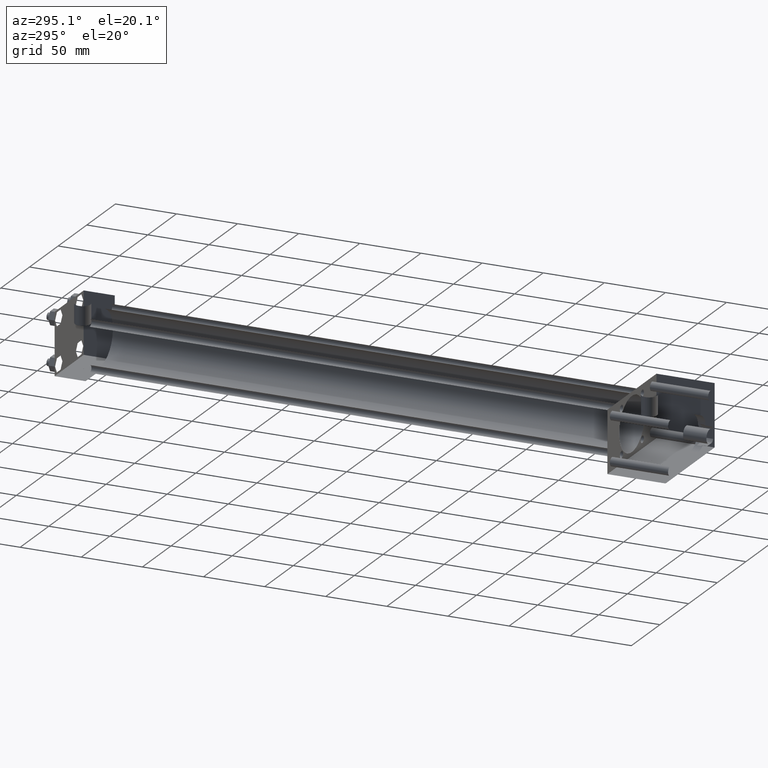
[diagram: clean part render]
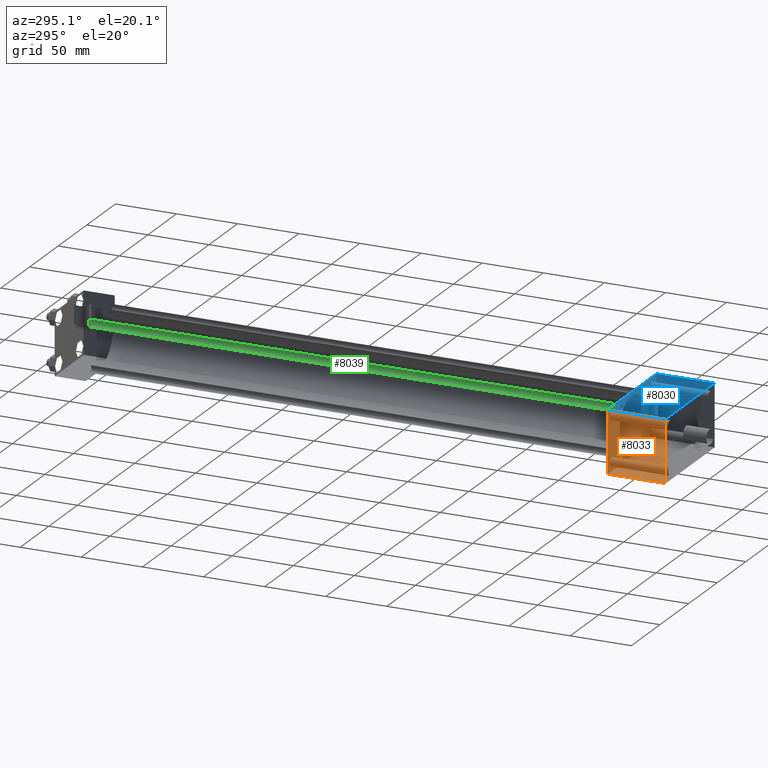
[diagram: same view with three faces highlighted in distinct colors, each labeled with its STEP entity id]
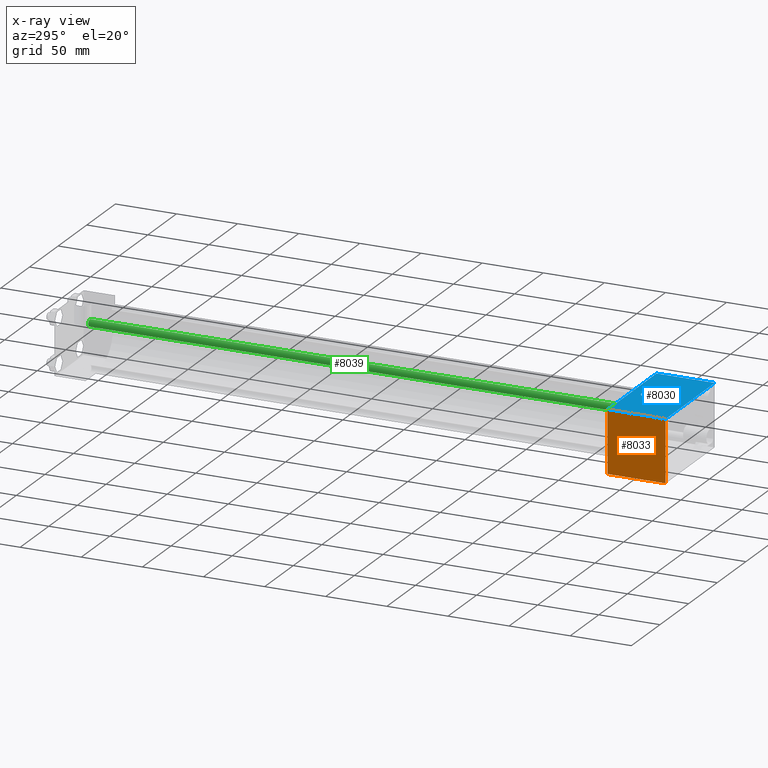
[diagram: x-ray of the same camera — body ghosted, the three highlighted faces saturated]
A machine part, auxiliary view with three faces highlighted in distinct colors.
The next image is the same camera in x-ray (body ghosted, the three faces saturated) — at least one of them is partly hidden behind the body in this view.
Their STEP definitions:

[orange] entity #8033 — the highlighted planar face has unit normal (-1, 0, 0).
#491=EDGE_CURVE('',#497,#497,#492,.T.);
#492=CIRCLE('',#493,2.778125000E+000);
#493=AXIS2_PLACEMENT_3D('',#494,#495,#496);
#494=CARTESIAN_POINT('',(-4.286250000E+001,4.603750000E+001,0.000000000E+000));
#495=DIRECTION('',(1.0E+000,0.0E+000,0.0E+000));
#496=DIRECTION('',(0.0E+000,-1.0E+000,0.0E+000));
#497=VERTEX_POINT('',#498);
#498=CARTESIAN_POINT('',(-4.286250000E+001,4.325937500E+001,0.000000000E+000));
#743=VERTEX_POINT('',#745);
#745=CARTESIAN_POINT('',(-4.286250000E+001,1.587500000E+001,-2.540000000E+001));
#759=VERTEX_POINT('',#760);
#760=CARTESIAN_POINT('',(-4.286250000E+001,1.587500000E+001,2.540000000E+001));
#761=EDGE_CURVE('',#759,#743,#762,.T.);
#762=LINE('',#763,#764);
#763=CARTESIAN_POINT('',(-4.286250000E+001,1.587500000E+001,2.540000000E+001));
#764=VECTOR('',#765,1.0E+000);
#765=DIRECTION('',(0.0E+000,0.0E+000,-1.0E+000));
#779=EDGE_CURVE('',#784,#759,#780,.T.);
#780=LINE('',#781,#782);
#781=CARTESIAN_POINT('',(-4.286250000E+001,6.350000000E+001,2.540000000E+001));
#782=VECTOR('',#783,1.0E+000);
#783=DIRECTION('',(0.0E+000,-1.0E+000,0.0E+000));
#784=VERTEX_POINT('',#785);
#785=CARTESIAN_POINT('',(-4.286250000E+001,6.350000000E+001,2.540000000E+001));
#819=EDGE_CURVE('',#824,#743,#820,.T.);
#820=LINE('',#821,#822);
#821=CARTESIAN_POINT('',(-4.286250000E+001,6.350000000E+001,-2.540000000E+001));
#822=VECTOR('',#823,1.0E+000);
#823=DIRECTION('',(0.0E+000,-1.0E+000,0.0E+000));
#824=VERTEX_POINT('',#825);
#825=CARTESIAN_POINT('',(-4.286250000E+001,6.350000000E+001,-2.540000000E+001));
#856=FACE_OUTER_BOUND('',#858,.T.);
#857=FACE_BOUND('',#859,.T.);
#858=EDGE_LOOP('',(#860,#861,#862,#863));
#859=EDGE_LOOP('',(#869));
#860=ORIENTED_EDGE('',*,*,#864,.T.);
#861=ORIENTED_EDGE('',*,*,#819,.T.);
#862=ORIENTED_EDGE('',*,*,#761,.F.);
#863=ORIENTED_EDGE('',*,*,#779,.F.);
#864=EDGE_CURVE('',#784,#824,#865,.T.);
#865=LINE('',#866,#867);
#866=CARTESIAN_POINT('',(-4.286250000E+001,6.350000000E+001,2.540000000E+001));
#867=VECTOR('',#868,1.0E+000);
#868=DIRECTION('',(0.0E+000,0.0E+000,-1.0E+000));
#869=ORIENTED_EDGE('',*,*,#491,.T.);
#870=PLANE('',#871);
#871=AXIS2_PLACEMENT_3D('',#872,#873,#874);
#872=CARTESIAN_POINT('',(-4.286250000E+001,6.350000000E+001,2.540000000E+001));
#873=DIRECTION('',(-1.0E+000,0.0E+000,0.0E+000));
#874=DIRECTION('',(0.0E+000,0.0E+000,1.0E+000));
#8033=ADVANCED_FACE('',(#856,#857),#870,.T.);

[blue] entity #8030 — the highlighted planar face has unit normal (0, 0, 1).
#596=EDGE_CURVE('',#602,#602,#597,.T.);
#597=CIRCLE('',#598,6.350000000E+000);
#598=AXIS2_PLACEMENT_3D('',#599,#600,#601);
#599=CARTESIAN_POINT('',(0.000000000E+000,4.921250000E+001,2.540000000E+001));
#600=DIRECTION('',(0.0E+000,0.0E+000,-1.0E+000));
#601=DIRECTION('',(0.0E+000,1.0E+000,0.0E+000));
#602=VERTEX_POINT('',#603);
#603=CARTESIAN_POINT('',(0.000000000E+000,5.556250000E+001,2.540000000E+001));
#752=VERTEX_POINT('',#753);
#753=CARTESIAN_POINT('',(4.286250000E+001,1.587500000E+001,2.540000000E+001));
#754=EDGE_CURVE('',#752,#759,#755,.T.);
#755=LINE('',#756,#757);
#756=CARTESIAN_POINT('',(4.286250000E+001,1.587500000E+001,2.540000000E+001));
#757=VECTOR('',#758,1.0E+000);
#758=DIRECTION('',(-1.0E+000,0.0E+000,0.0E+000));
#759=VERTEX_POINT('',#760);
#760=CARTESIAN_POINT('',(-4.286250000E+001,1.587500000E+001,2.540000000E+001));
#771=FACE_OUTER_BOUND('',#773,.T.);
#772=FACE_BOUND('',#774,.T.);
#773=EDGE_LOOP('',(#775,#776,#777,#778));
#774=EDGE_LOOP('',(#798));
#775=ORIENTED_EDGE('',*,*,#779,.T.);
#776=ORIENTED_EDGE('',*,*,#754,.F.);
#777=ORIENTED_EDGE('',*,*,#786,.F.);
#778=ORIENTED_EDGE('',*,*,#793,.T.);
#779=EDGE_CURVE('',#784,#759,#780,.T.);
#780=LINE('',#781,#782);
#781=CARTESIAN_POINT('',(-4.286250000E+001,6.350000000E+001,2.540000000E+001));
#782=VECTOR('',#783,1.0E+000);
#783=DIRECTION('',(0.0E+000,-1.0E+000,0.0E+000));
#784=VERTEX_POINT('',#785);
#785=CARTESIAN_POINT('',(-4.286250000E+001,6.350000000E+001,2.540000000E+001));
#786=EDGE_CURVE('',#791,#752,#787,.T.);
#787=LINE('',#788,#789);
#788=CARTESIAN_POINT('',(4.286250000E+001,6.350000000E+001,2.540000000E+001));
#789=VECTOR('',#790,1.0E+000);
#790=DIRECTION('',(0.0E+000,-1.0E+000,0.0E+000));
#791=VERTEX_POINT('',#792);
#792=CARTESIAN_POINT('',(4.286250000E+001,6.350000000E+001,2.540000000E+001));
#793=EDGE_CURVE('',#791,#784,#794,.T.);
#794=LINE('',#795,#796);
#795=CARTESIAN_POINT('',(4.286250000E+001,6.350000000E+001,2.540000000E+001));
#796=VECTOR('',#797,1.0E+000);
#797=DIRECTION('',(-1.0E+000,0.0E+000,0.0E+000));
#798=ORIENTED_EDGE('',*,*,#596,.T.);
#799=PLANE('',#800);
#800=AXIS2_PLACEMENT_3D('',#801,#802,#803);
#801=CARTESIAN_POINT('',(4.286250000E+001,6.350000000E+001,2.540000000E+001));
#802=DIRECTION('',(0.0E+000,0.0E+000,1.0E+000));
#803=DIRECTION('',(1.0E+000,0.0E+000,0.0E+000));
#8030=ADVANCED_FACE('',(#771,#772),#799,.T.);

[green] entity #8039 — the highlighted cylindrical surface (bore or boss wall) has radius 2.8575 mm, axis along (0, -1, 0).
#970=EDGE_CURVE('',#976,#976,#971,.T.);
#971=CIRCLE('',#972,2.857500000E+000);
#972=AXIS2_PLACEMENT_3D('',#973,#974,#975);
#973=CARTESIAN_POINT('',(-1.816100000E+001,6.350000000E+001,1.816100000E+001));
#974=DIRECTION('',(0.0E+000,1.0E+000,0.0E+000));
#975=DIRECTION('',(0.0E+000,0.0E+000,1.0E+000));
#976=VERTEX_POINT('',#977);
#977=CARTESIAN_POINT('',(-1.816100000E+001,6.350000000E+001,2.101850000E+001));
#1097=FACE_OUTER_BOUND('',#1099,.T.);
#1098=FACE_BOUND('',#1100,.T.);
#1099=EDGE_LOOP('',(#1101));
#1100=EDGE_LOOP('',(#1102));
#1101=ORIENTED_EDGE('',*,*,#1156,.F.);
#1102=ORIENTED_EDGE('',*,*,#970,.T.);
#1103=CYLINDRICAL_SURFACE('',#1104,2.857500000E+000);
#1104=AXIS2_PLACEMENT_3D('',#1105,#1106,#1107);
#1105=CARTESIAN_POINT('',(-1.816100000E+001,4.984750000E+002,1.816100000E+001));
#1106=DIRECTION('',(0.0E+000,-1.0E+000,0.0E+000));
#1107=DIRECTION('',(0.0E+000,0.0E+000,-1.0E+000));
#1156=EDGE_CURVE('',#1162,#1162,#1157,.T.);
#1157=CIRCLE('',#1158,2.857500000E+000);
#1158=AXIS2_PLACEMENT_3D('',#1159,#1160,#1161);
#1159=CARTESIAN_POINT('',(-1.816100000E+001,4.984750000E+002,1.816100000E+001));
#1160=DIRECTION('',(0.0E+000,1.0E+000,0.0E+000));
#1161=DIRECTION('',(1.0E+000,0.0E+000,0.0E+000));
#1162=VERTEX_POINT('',#1163);
#1163=CARTESIAN_POINT('',(-1.530350000E+001,4.984750000E+002,1.816100000E+001));
#8039=ADVANCED_FACE('',(#1097,#1098),#1103,.T.);